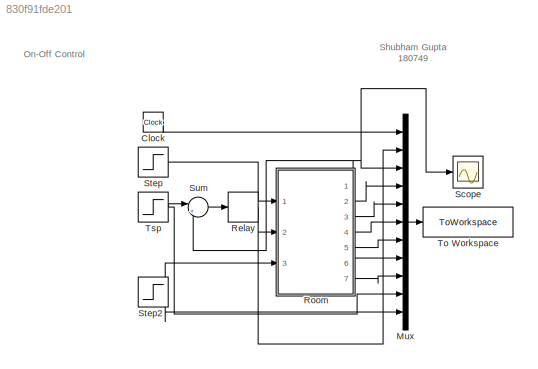
MODEL slx_830f91fde201
KIND model
CONFIG AbsTol = auto
CONFIG EnableMultiTasking = on
CONFIG FixedStep = 0.1
CONFIG MaxStep = auto
CONFIG MinStep = auto
CONFIG RelTol = 1e-3
CONFIG SampleTimeConstraint = Unconstrained
CONFIG SolverName = ode2
CONFIG StartTime = 0.0
CONFIG StopTime = 100
BLOCK [Clock] Clock
BLOCK [Mux] Mux
  DisplayOption = bar
  Inputs = 11
  Ports = [11, 1]
BLOCK [Relay] Relay
  OnOutputValue = 100
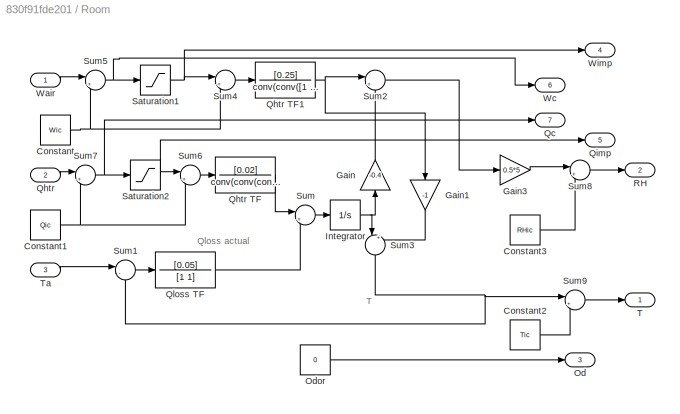
BLOCK [SubSystem] Room
  Ports = [3, 7]
  RequestExecContextInheritance = off
BLOCK [Constant] Room/Constant
  Value = Wic
BLOCK [Constant] Room/Constant1
  Value = Qic
BLOCK [Constant] Room/Constant2
  Value = Tic
BLOCK [Constant] Room/Constant3
  Value = RHic
BLOCK [Gain] Room/Gain
  Gain = -0.4
  NameLocation = right
BLOCK [Gain] Room/Gain1
  Gain = -1
  NameLocation = left
BLOCK [Gain] Room/Gain3
  Gain = 0.5*5
BLOCK [Integrator] Room/Integrator
  Ports = [1, 1]
BLOCK [Outport] Room/Od
  Port = 3
BLOCK [Constant] Room/Odor
  Value = 0
BLOCK [Outport] Room/Qc
  Port = 7
BLOCK [Inport] Room/Qhtr
  Port = 2
BLOCK [TransferFcn] Room/Qhtr TF
  Denominator = conv(conv(conv([0.75 1],[0.75,1]),[0.75 1]),conv([0.75 1],[0.75,1]))
  Numerator = [0.02]
BLOCK [TransferFcn] Room/Qhtr TF1
  Denominator = conv(conv([1 1],conv([1,1],[1,1])),conv([1 1],conv([1,1],[1,1])))
  Numerator = [0.25]
BLOCK [Outport] Room/Qimp
  Port = 5
BLOCK [TransferFcn] Room/Qloss TF
  Denominator = [1 1]
  Numerator = [0.05]
BLOCK [Outport] Room/RH
  Port = 2
BLOCK [Saturate] Room/Saturation1
  LowerLimit = 0
  UpperLimit = 100
BLOCK [Saturate] Room/Saturation2
  LowerLimit = 0
  UpperLimit = 100
BLOCK [Sum] Room/Sum
  Inputs = |+-
  Ports = [2, 1]
BLOCK [Sum] Room/Sum1
  Inputs = |-+
  Ports = [2, 1]
BLOCK [Sum] Room/Sum2
  Inputs = |++
  Ports = [2, 1]
BLOCK [Sum] Room/Sum3
  Inputs = |++
  NameLocation = left
  Ports = [2, 1]
BLOCK [Sum] Room/Sum4
  Inputs = |+-
  Ports = [2, 1]
BLOCK [Sum] Room/Sum5
  Inputs = |++
  Ports = [2, 1]
BLOCK [Sum] Room/Sum6
  Inputs = |+-
  Ports = [2, 1]
BLOCK [Sum] Room/Sum7
  Inputs = |++
  Ports = [2, 1]
BLOCK [Sum] Room/Sum8
  Inputs = |++
  Ports = [2, 1]
BLOCK [Sum] Room/Sum9
  Inputs = |++
  Ports = [2, 1]
BLOCK [Outport] Room/T
BLOCK [Inport] Room/Ta
  Port = 3
BLOCK [Inport] Room/Wair
BLOCK [Outport] Room/Wc
  Port = 6
BLOCK [Outport] Room/Wimp
  Port = 4
BLOCK [Scope] Scope
  Floating = off
  NumInputPorts = 1
  Ports = [1]
  ScopeSpecificationString = Simulink.scopes.TimeScopeBlockCfg('CurrentConfiguration', extmgr.ConfigurationSet(extmgr.Configuration('Core','General UI',true),extmgr.Configuration('Core','Source UI',true),extmgr.Configuration('Sources','WiredSimulink',true),extmgr.Configuration('Visuals','Time Domain',true,'SerializedDisplays',{struct('MinYLimReal','-14.42396','MaxYLimReal','29.81563','YLabelReal','','MinYLimMag','0.00000','Ma...<+1361ch>
BLOCK [Step] Step
  After = 0
  SampleTime = 0
  Time = 0
BLOCK [Step] Step2
  After = 0
  SampleTime = 0
  Time = 0
BLOCK [Sum] Sum
  Inputs = |+-
  Ports = [2, 1]
BLOCK [ToWorkspace] To Workspace
  FixptAsFi = on
  MaxDataPoints = inf
  Ports = [1]
  SampleTime = -1
  VariableName = y
BLOCK [Step] Tsp
  After = 25
  Before = -10
  SampleTime = 0
  Time = 0
ANNOTATION (root): On-Off Control
ANNOTATION (root): Shubham Gupta 180749
ANNOTATION Room: Qloss actual
ANNOTATION Room: T
LINE Clock:1 -> Mux:1
LINE Mux:1 -> To Workspace:1
NET Relay:1 -> Mux:2, Room:2
NET Room/Constant1:1 -> Room/Sum6:2, Room/Sum7:2
LINE Room/Constant2:1 -> Room/Sum9:2
LINE Room/Constant3:1 -> Room/Sum8:2
NET Room/Constant:1 -> Room/Sum4:2, Room/Sum5:2
LINE Room/Gain1:1 -> Room/Sum3:2
LINE Room/Gain3:1 -> Room/Sum8:1
LINE Room/Gain:1 -> Room/Sum2:2
NET Room/Integrator:1 -> Room/Gain:1, Room/Sum3:1
LINE Room/Odor:1 -> Room/Od:1
NET Room/Qhtr TF1:1 -> Room/Gain1:1, Room/Sum2:1
LINE Room/Qhtr TF:1 -> Room/Sum:1
LINE Room/Qhtr:1 -> Room/Sum7:1
LINE Room/Qloss TF:1 -> Room/Sum:2
NET Room/Saturation1:1 -> Room/Sum4:1, Room/Wimp:1
NET Room/Saturation2:1 -> Room/Qimp:1, Room/Sum6:1
LINE Room/Sum1:1 -> Room/Qloss TF:1
LINE Room/Sum2:1 -> Room/Gain3:1
NET Room/Sum3:1 -> Room/Sum1:2, Room/Sum9:1
LINE Room/Sum4:1 -> Room/Qhtr TF1:1
NET Room/Sum5:1 -> Room/Saturation1:1, Room/Wc:1
LINE Room/Sum6:1 -> Room/Qhtr TF:1
NET Room/Sum7:1 -> Room/Qc:1, Room/Saturation2:1
LINE Room/Sum8:1 -> Room/RH:1
LINE Room/Sum9:1 -> Room/T:1
LINE Room/Sum:1 -> Room/Integrator:1
LINE Room/Ta:1 -> Room/Sum1:1
LINE Room/Wair:1 -> Room/Sum5:1
NET Room:1 -> Mux:3, Scope:1, Sum:2
LINE Room:2 -> Mux:4
LINE Room:3 -> Mux:5
LINE Room:4 -> Mux:6
LINE Room:5 -> Mux:7
LINE Room:6 -> Mux:8
LINE Room:7 -> Mux:9
NET Step2:1 -> Mux:11, Room:3
LINE Step:1 -> Room:1
LINE Sum:1 -> Relay:1
NET Tsp:1 -> Mux:10, Sum:1
note: NET lines group one-source signal fan-out (src -> all destinations, sorted); 1:1 wires keep LINE
